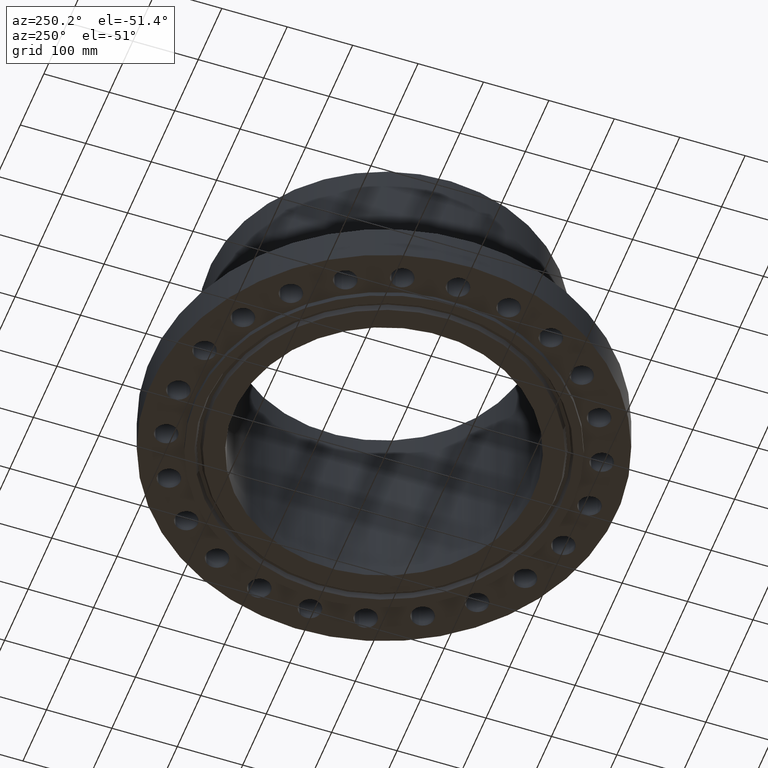
[diagram: clean part render]
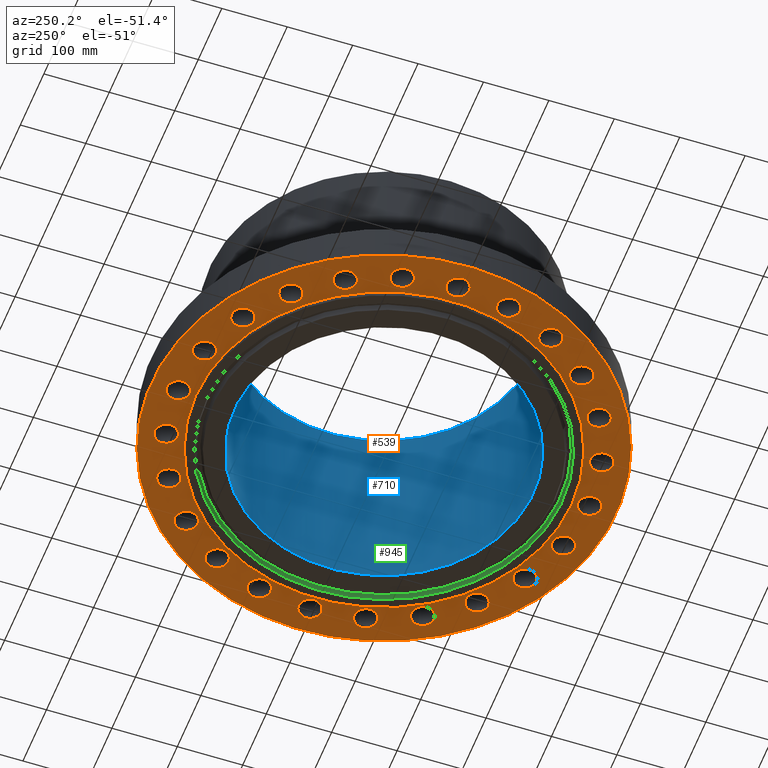
[diagram: same view with three faces highlighted in distinct colors, each labeled with its STEP entity id]
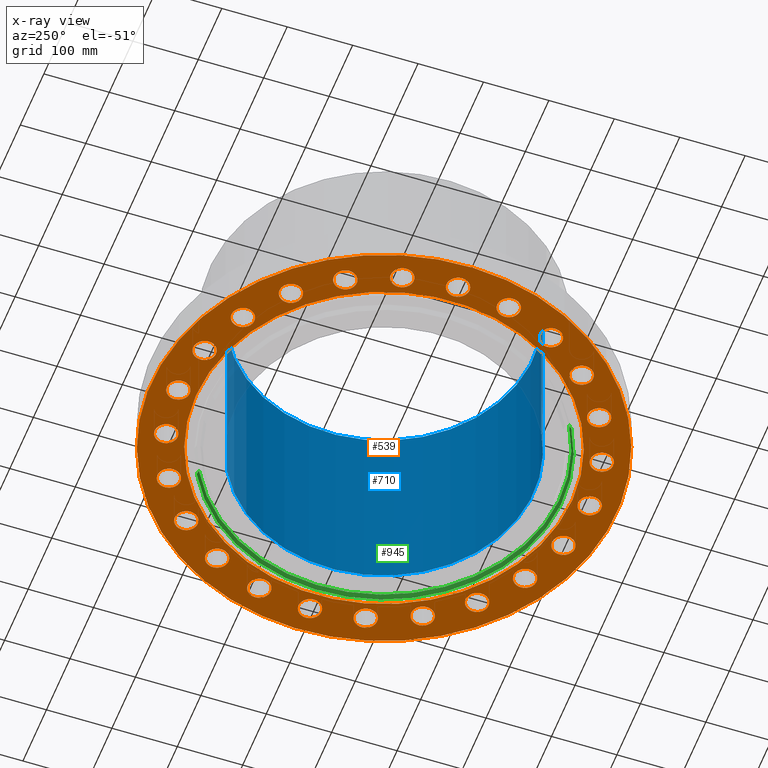
[diagram: x-ray of the same camera — body ghosted, the three highlighted faces saturated]
A machine part, auxiliary view with three faces highlighted in distinct colors.
The next image is the same camera in x-ray (body ghosted, the three faces saturated) — at least one of them is partly hidden behind the body in this view.
Their STEP definitions:

[orange] entity #539 — the highlighted planar face has unit normal (0, 0, -1).
#65=AXIS2_PLACEMENT_3D('Circle Axis2P3D',#63,#64,$) ;
#78=AXIS2_PLACEMENT_3D('Plane Axis2P3D',#75,#76,#77) ;
#82=AXIS2_PLACEMENT_3D('Circle Axis2P3D',#80,#81,$) ;
#91=AXIS2_PLACEMENT_3D('Circle Axis2P3D',#89,#90,$) ;
#100=AXIS2_PLACEMENT_3D('Circle Axis2P3D',#98,#99,$) ;
#109=AXIS2_PLACEMENT_3D('Circle Axis2P3D',#107,#108,$) ;
#118=AXIS2_PLACEMENT_3D('Circle Axis2P3D',#116,#117,$) ;
#127=AXIS2_PLACEMENT_3D('Circle Axis2P3D',#125,#126,$) ;
#136=AXIS2_PLACEMENT_3D('Circle Axis2P3D',#134,#135,$) ;
#145=AXIS2_PLACEMENT_3D('Circle Axis2P3D',#143,#144,$) ;
#154=AXIS2_PLACEMENT_3D('Circle Axis2P3D',#152,#153,$) ;
#163=AXIS2_PLACEMENT_3D('Circle Axis2P3D',#161,#162,$) ;
#172=AXIS2_PLACEMENT_3D('Circle Axis2P3D',#170,#171,$) ;
#181=AXIS2_PLACEMENT_3D('Circle Axis2P3D',#179,#180,$) ;
#190=AXIS2_PLACEMENT_3D('Circle Axis2P3D',#188,#189,$) ;
#199=AXIS2_PLACEMENT_3D('Circle Axis2P3D',#197,#198,$) ;
#208=AXIS2_PLACEMENT_3D('Circle Axis2P3D',#206,#207,$) ;
#217=AXIS2_PLACEMENT_3D('Circle Axis2P3D',#215,#216,$) ;
#226=AXIS2_PLACEMENT_3D('Circle Axis2P3D',#224,#225,$) ;
#235=AXIS2_PLACEMENT_3D('Circle Axis2P3D',#233,#234,$) ;
#244=AXIS2_PLACEMENT_3D('Circle Axis2P3D',#242,#243,$) ;
#253=AXIS2_PLACEMENT_3D('Circle Axis2P3D',#251,#252,$) ;
#262=AXIS2_PLACEMENT_3D('Circle Axis2P3D',#260,#261,$) ;
#271=AXIS2_PLACEMENT_3D('Circle Axis2P3D',#269,#270,$) ;
#280=AXIS2_PLACEMENT_3D('Circle Axis2P3D',#278,#279,$) ;
#289=AXIS2_PLACEMENT_3D('Circle Axis2P3D',#287,#288,$) ;
#298=AXIS2_PLACEMENT_3D('Circle Axis2P3D',#296,#297,$) ;
#307=AXIS2_PLACEMENT_3D('Circle Axis2P3D',#305,#306,$) ;
#316=AXIS2_PLACEMENT_3D('Circle Axis2P3D',#314,#315,$) ;
#325=AXIS2_PLACEMENT_3D('Circle Axis2P3D',#323,#324,$) ;
#334=AXIS2_PLACEMENT_3D('Circle Axis2P3D',#332,#333,$) ;
#343=AXIS2_PLACEMENT_3D('Circle Axis2P3D',#341,#342,$) ;
#352=AXIS2_PLACEMENT_3D('Circle Axis2P3D',#350,#351,$) ;
#361=AXIS2_PLACEMENT_3D('Circle Axis2P3D',#359,#360,$) ;
#370=AXIS2_PLACEMENT_3D('Circle Axis2P3D',#368,#369,$) ;
#379=AXIS2_PLACEMENT_3D('Circle Axis2P3D',#377,#378,$) ;
#388=AXIS2_PLACEMENT_3D('Circle Axis2P3D',#386,#387,$) ;
#397=AXIS2_PLACEMENT_3D('Circle Axis2P3D',#395,#396,$) ;
#406=AXIS2_PLACEMENT_3D('Circle Axis2P3D',#404,#405,$) ;
#415=AXIS2_PLACEMENT_3D('Circle Axis2P3D',#413,#414,$) ;
#424=AXIS2_PLACEMENT_3D('Circle Axis2P3D',#422,#423,$) ;
#433=AXIS2_PLACEMENT_3D('Circle Axis2P3D',#431,#432,$) ;
#442=AXIS2_PLACEMENT_3D('Circle Axis2P3D',#440,#441,$) ;
#451=AXIS2_PLACEMENT_3D('Circle Axis2P3D',#449,#450,$) ;
#460=AXIS2_PLACEMENT_3D('Circle Axis2P3D',#458,#459,$) ;
#469=AXIS2_PLACEMENT_3D('Circle Axis2P3D',#467,#468,$) ;
#478=AXIS2_PLACEMENT_3D('Circle Axis2P3D',#476,#477,$) ;
#487=AXIS2_PLACEMENT_3D('Circle Axis2P3D',#485,#486,$) ;
#496=AXIS2_PLACEMENT_3D('Circle Axis2P3D',#494,#495,$) ;
#505=AXIS2_PLACEMENT_3D('Circle Axis2P3D',#503,#504,$) ;
#514=AXIS2_PLACEMENT_3D('Circle Axis2P3D',#512,#513,$) ;
#523=AXIS2_PLACEMENT_3D('Circle Axis2P3D',#521,#522,$) ;
#532=AXIS2_PLACEMENT_3D('Circle Axis2P3D',#530,#531,$) ;
#46=CARTESIAN_POINT('Vertex',(11.7694680323,-0.330803621638,2.2401153548E-016)) ;
#60=CARTESIAN_POINT('Vertex',(12.9805319678,0.330803621638,2.2401153548E-016)) ;
#63=CARTESIAN_POINT('Axis2P3D Location',(12.375,0.,0.)) ;
#75=CARTESIAN_POINT('Axis2P3D Location',(0.,10.4188790699,0.)) ;
#80=CARTESIAN_POINT('Axis2P3D Location',(0.,0.,0.)) ;
#84=CARTESIAN_POINT('Vertex',(-6.71195754049,-12.2861558665,2.23792987641E-015)) ;
#86=CARTESIAN_POINT('Vertex',(6.71195754049,12.2861558665,2.23792987641E-015)) ;
#89=CARTESIAN_POINT('Axis2P3D Location',(0.,0.,0.)) ;
#98=CARTESIAN_POINT('Axis2P3D Location',(12.375,0.,0.)) ;
#107=CARTESIAN_POINT('Axis2P3D Location',(0.,0.,0.)) ;
#111=CARTESIAN_POINT('Vertex',(5.42350140548,9.92765273142,2.23792987641E-015)) ;
#113=CARTESIAN_POINT('Vertex',(-5.42350140548,-9.92765273142,2.23792987641E-015)) ;
#116=CARTESIAN_POINT('Axis2P3D Location',(0.,0.,0.)) ;
#125=CARTESIAN_POINT('Axis2P3D Location',(11.9533321004,-3.20288568316,0.)) ;
#129=CARTESIAN_POINT('Vertex',(12.6238493441,-3.04007712725,0.)) ;
#131=CARTESIAN_POINT('Vertex',(11.2828148567,-3.36569423907,0.)) ;
#134=CARTESIAN_POINT('Axis2P3D Location',(11.9533321004,-3.20288568316,0.)) ;
#143=CARTESIAN_POINT('Axis2P3D Location',(10.7170643719,-6.18750000002,0.)) ;
#147=CARTESIAN_POINT('Vertex',(11.4068722495,-6.20378164388,0.)) ;
#149=CARTESIAN_POINT('Vertex',(10.0272564942,-6.17121835617,0.)) ;
#152=CARTESIAN_POINT('Axis2P3D Location',(10.7170643719,-6.18750000002,0.)) ;
#161=CARTESIAN_POINT('Axis2P3D Location',(8.75044641722,-8.75044641722,0.)) ;
#165=CARTESIAN_POINT('Vertex',(9.41253566191,-8.94470869371,0.)) ;
#167=CARTESIAN_POINT('Vertex',(8.08835717253,-8.55618414073,0.)) ;
#170=CARTESIAN_POINT('Axis2P3D Location',(8.75044641722,-8.75044641722,0.)) ;
#179=CARTESIAN_POINT('Axis2P3D Location',(6.18750000002,-10.7170643719,0.)) ;
#183=CARTESIAN_POINT('Vertex',(6.77675032388,-11.0760686279,0.)) ;
#185=CARTESIAN_POINT('Vertex',(5.59824967617,-10.3580601159,0.)) ;
#188=CARTESIAN_POINT('Axis2P3D Location',(6.18750000002,-10.7170643719,0.)) ;
#197=CARTESIAN_POINT('Axis2P3D Location',(3.20288568316,-11.9533321004,0.)) ;
#201=CARTESIAN_POINT('Vertex',(3.67914065039,-12.4526127892,0.)) ;
#203=CARTESIAN_POINT('Vertex',(2.72663071593,-11.4540514116,0.)) ;
#206=CARTESIAN_POINT('Axis2P3D Location',(3.20288568316,-11.9533321004,0.)) ;
#215=CARTESIAN_POINT('Axis2P3D Location',(-1.46864148139E-015,-12.375,0.)) ;
#219=CARTESIAN_POINT('Vertex',(0.330803621638,-12.9805319678,0.)) ;
#221=CARTESIAN_POINT('Vertex',(-0.330803621638,-11.7694680323,0.)) ;
#224=CARTESIAN_POINT('Axis2P3D Location',(-1.53857679003E-015,-12.375,0.)) ;
#233=CARTESIAN_POINT('Axis2P3D Location',(-3.20288568316,-11.9533321004,0.)) ;
#237=CARTESIAN_POINT('Vertex',(-3.04007712725,-12.6238493441,0.)) ;
#239=CARTESIAN_POINT('Vertex',(-3.36569423907,-11.2828148567,0.)) ;
#242=CARTESIAN_POINT('Axis2P3D Location',(-3.20288568316,-11.9533321004,0.)) ;
#251=CARTESIAN_POINT('Axis2P3D Location',(-6.18750000002,-10.7170643719,0.)) ;
#255=CARTESIAN_POINT('Vertex',(-6.20378164388,-11.4068722495,0.)) ;
#257=CARTESIAN_POINT('Vertex',(-6.17121835617,-10.0272564942,0.)) ;
#260=CARTESIAN_POINT('Axis2P3D Location',(-6.18750000002,-10.7170643719,0.)) ;
#269=CARTESIAN_POINT('Axis2P3D Location',(-8.75044641722,-8.75044641722,0.)) ;
#273=CARTESIAN_POINT('Vertex',(-8.94470869371,-9.41253566191,0.)) ;
#275=CARTESIAN_POINT('Vertex',(-8.55618414073,-8.08835717253,0.)) ;
#278=CARTESIAN_POINT('Axis2P3D Location',(-8.75044641722,-8.75044641722,0.)) ;
#287=CARTESIAN_POINT('Axis2P3D Location',(-10.7170643719,-6.18750000002,0.)) ;
#291=CARTESIAN_POINT('Vertex',(-11.0760686279,-6.77675032388,0.)) ;
#293=CARTESIAN_POINT('Vertex',(-10.3580601159,-5.59824967617,0.)) ;
#296=CARTESIAN_POINT('Axis2P3D Location',(-10.7170643719,-6.18750000002,0.)) ;
#305=CARTESIAN_POINT('Axis2P3D Location',(-11.9533321004,-3.20288568316,0.)) ;
#309=CARTESIAN_POINT('Vertex',(-12.4526127892,-3.67914065039,0.)) ;
#311=CARTESIAN_POINT('Vertex',(-11.4540514116,-2.72663071593,0.)) ;
#314=CARTESIAN_POINT('Axis2P3D Location',(-11.9533321004,-3.20288568316,0.)) ;
#323=CARTESIAN_POINT('Axis2P3D Location',(-12.375,0.,0.)) ;
#327=CARTESIAN_POINT('Vertex',(-12.9805319678,-0.330803621638,0.)) ;
#329=CARTESIAN_POINT('Vertex',(-11.7694680323,0.330803621638,0.)) ;
#332=CARTESIAN_POINT('Axis2P3D Location',(-12.375,-4.47585975282E-015,0.)) ;
#341=CARTESIAN_POINT('Axis2P3D Location',(-11.9533321004,3.20288568316,0.)) ;
#345=CARTESIAN_POINT('Vertex',(-12.6238493441,3.04007712725,0.)) ;
#347=CARTESIAN_POINT('Vertex',(-11.2828148567,3.36569423907,0.)) ;
#350=CARTESIAN_POINT('Axis2P3D Location',(-11.9533321004,3.20288568316,0.)) ;
#359=CARTESIAN_POINT('Axis2P3D Location',(-10.7170643719,6.18750000002,0.)) ;
#363=CARTESIAN_POINT('Vertex',(-11.4068722495,6.20378164388,0.)) ;
#365=CARTESIAN_POINT('Vertex',(-10.0272564942,6.17121835617,0.)) ;
#368=CARTESIAN_POINT('Axis2P3D Location',(-10.7170643719,6.18750000002,0.)) ;
#377=CARTESIAN_POINT('Axis2P3D Location',(-8.75044641722,8.75044641722,0.)) ;
#381=CARTESIAN_POINT('Vertex',(-9.41253566191,8.94470869371,0.)) ;
#383=CARTESIAN_POINT('Vertex',(-8.08835717253,8.55618414073,0.)) ;
#386=CARTESIAN_POINT('Axis2P3D Location',(-8.75044641722,8.75044641722,0.)) ;
#395=CARTESIAN_POINT('Axis2P3D Location',(-6.18750000002,10.7170643719,0.)) ;
#399=CARTESIAN_POINT('Vertex',(-6.77675032388,11.0760686279,0.)) ;
#401=CARTESIAN_POINT('Vertex',(-5.59824967617,10.3580601159,0.)) ;
#404=CARTESIAN_POINT('Axis2P3D Location',(-6.18750000002,10.7170643719,0.)) ;
#413=CARTESIAN_POINT('Axis2P3D Location',(-3.20288568316,11.9533321004,0.)) ;
#417=CARTESIAN_POINT('Vertex',(-3.67914065039,12.4526127892,0.)) ;
#419=CARTESIAN_POINT('Vertex',(-2.72663071593,11.4540514116,0.)) ;
#422=CARTESIAN_POINT('Axis2P3D Location',(-3.20288568316,11.9533321004,0.)) ;
#431=CARTESIAN_POINT('Axis2P3D Location',(-2.23792987641E-015,12.375,0.)) ;
#435=CARTESIAN_POINT('Vertex',(-0.330803621638,12.9805319678,0.)) ;
#437=CARTESIAN_POINT('Vertex',(0.330803621638,11.7694680323,0.)) ;
#440=CARTESIAN_POINT('Axis2P3D Location',(-2.0281239505E-015,12.375,0.)) ;
#449=CARTESIAN_POINT('Axis2P3D Location',(3.20288568316,11.9533321004,0.)) ;
#453=CARTESIAN_POINT('Vertex',(3.04007712725,12.6238493441,0.)) ;
#455=CARTESIAN_POINT('Vertex',(3.36569423907,11.2828148567,0.)) ;
#458=CARTESIAN_POINT('Axis2P3D Location',(3.20288568316,11.9533321004,0.)) ;
#467=CARTESIAN_POINT('Axis2P3D Location',(6.18750000002,10.7170643719,0.)) ;
#471=CARTESIAN_POINT('Vertex',(6.20378164388,11.4068722495,0.)) ;
#473=CARTESIAN_POINT('Vertex',(6.17121835617,10.0272564942,0.)) ;
#476=CARTESIAN_POINT('Axis2P3D Location',(6.18750000002,10.7170643719,0.)) ;
#485=CARTESIAN_POINT('Axis2P3D Location',(8.75044641722,8.75044641722,0.)) ;
#489=CARTESIAN_POINT('Vertex',(8.94470869371,9.41253566191,0.)) ;
#491=CARTESIAN_POINT('Vertex',(8.55618414073,8.08835717253,0.)) ;
#494=CARTESIAN_POINT('Axis2P3D Location',(8.75044641722,8.75044641722,0.)) ;
#503=CARTESIAN_POINT('Axis2P3D Location',(10.7170643719,6.18750000002,0.)) ;
#507=CARTESIAN_POINT('Vertex',(11.0760686279,6.77675032388,0.)) ;
#509=CARTESIAN_POINT('Vertex',(10.3580601159,5.59824967617,0.)) ;
#512=CARTESIAN_POINT('Axis2P3D Location',(10.7170643719,6.18750000002,0.)) ;
#521=CARTESIAN_POINT('Axis2P3D Location',(11.9533321004,3.20288568316,0.)) ;
#525=CARTESIAN_POINT('Vertex',(12.4526127892,3.67914065039,0.)) ;
#527=CARTESIAN_POINT('Vertex',(11.4540514116,2.72663071593,0.)) ;
#530=CARTESIAN_POINT('Axis2P3D Location',(11.9533321004,3.20288568316,0.)) ;
#64=DIRECTION('Axis2P3D Direction',(0.,-0.,0.0393700787402)) ;
#76=DIRECTION('Axis2P3D Direction',(0.,0.,-0.0393700787402)) ;
#77=DIRECTION('Axis2P3D XDirection',(0.0393700787402,0.,0.)) ;
#81=DIRECTION('Axis2P3D Direction',(0.,0.,-0.0393700787402)) ;
#90=DIRECTION('Axis2P3D Direction',(0.,0.,-0.0393700787402)) ;
#99=DIRECTION('Axis2P3D Direction',(0.,0.,-0.0393700787402)) ;
#108=DIRECTION('Axis2P3D Direction',(0.,0.,-0.0393700787402)) ;
#117=DIRECTION('Axis2P3D Direction',(0.,0.,-0.0393700787402)) ;
#126=DIRECTION('Axis2P3D Direction',(0.,0.,-0.0393700787402)) ;
#135=DIRECTION('Axis2P3D Direction',(0.,0.,-0.0393700787402)) ;
#144=DIRECTION('Axis2P3D Direction',(0.,0.,-0.0393700787402)) ;
#153=DIRECTION('Axis2P3D Direction',(0.,0.,-0.0393700787402)) ;
#162=DIRECTION('Axis2P3D Direction',(0.,0.,-0.0393700787402)) ;
#171=DIRECTION('Axis2P3D Direction',(0.,0.,-0.0393700787402)) ;
#180=DIRECTION('Axis2P3D Direction',(0.,0.,-0.0393700787402)) ;
#189=DIRECTION('Axis2P3D Direction',(0.,0.,-0.0393700787402)) ;
#198=DIRECTION('Axis2P3D Direction',(0.,0.,-0.0393700787402)) ;
#207=DIRECTION('Axis2P3D Direction',(0.,0.,-0.0393700787402)) ;
#216=DIRECTION('Axis2P3D Direction',(0.,0.,-0.0393700787402)) ;
#225=DIRECTION('Axis2P3D Direction',(0.,0.,-0.0393700787402)) ;
#234=DIRECTION('Axis2P3D Direction',(0.,0.,-0.0393700787402)) ;
#243=DIRECTION('Axis2P3D Direction',(0.,0.,-0.0393700787402)) ;
#252=DIRECTION('Axis2P3D Direction',(0.,0.,-0.0393700787402)) ;
#261=DIRECTION('Axis2P3D Direction',(0.,0.,-0.0393700787402)) ;
#270=DIRECTION('Axis2P3D Direction',(0.,0.,-0.0393700787402)) ;
#279=DIRECTION('Axis2P3D Direction',(0.,0.,-0.0393700787402)) ;
#288=DIRECTION('Axis2P3D Direction',(0.,0.,-0.0393700787402)) ;
#297=DIRECTION('Axis2P3D Direction',(0.,0.,-0.0393700787402)) ;
#306=DIRECTION('Axis2P3D Direction',(0.,0.,-0.0393700787402)) ;
#315=DIRECTION('Axis2P3D Direction',(0.,0.,-0.0393700787402)) ;
#324=DIRECTION('Axis2P3D Direction',(0.,0.,-0.0393700787402)) ;
#333=DIRECTION('Axis2P3D Direction',(0.,0.,-0.0393700787402)) ;
#342=DIRECTION('Axis2P3D Direction',(0.,0.,-0.0393700787402)) ;
#351=DIRECTION('Axis2P3D Direction',(0.,0.,-0.0393700787402)) ;
#360=DIRECTION('Axis2P3D Direction',(0.,0.,-0.0393700787402)) ;
#369=DIRECTION('Axis2P3D Direction',(0.,0.,-0.0393700787402)) ;
#378=DIRECTION('Axis2P3D Direction',(0.,0.,-0.0393700787402)) ;
#387=DIRECTION('Axis2P3D Direction',(0.,0.,-0.0393700787402)) ;
#396=DIRECTION('Axis2P3D Direction',(0.,0.,-0.0393700787402)) ;
#405=DIRECTION('Axis2P3D Direction',(0.,0.,-0.0393700787402)) ;
#414=DIRECTION('Axis2P3D Direction',(0.,0.,-0.0393700787402)) ;
#423=DIRECTION('Axis2P3D Direction',(0.,0.,-0.0393700787402)) ;
#432=DIRECTION('Axis2P3D Direction',(0.,0.,-0.0393700787402)) ;
#441=DIRECTION('Axis2P3D Direction',(0.,0.,-0.0393700787402)) ;
#450=DIRECTION('Axis2P3D Direction',(0.,0.,-0.0393700787402)) ;
#459=DIRECTION('Axis2P3D Direction',(0.,0.,-0.0393700787402)) ;
#468=DIRECTION('Axis2P3D Direction',(0.,0.,-0.0393700787402)) ;
#477=DIRECTION('Axis2P3D Direction',(0.,0.,-0.0393700787402)) ;
#486=DIRECTION('Axis2P3D Direction',(0.,0.,-0.0393700787402)) ;
#495=DIRECTION('Axis2P3D Direction',(0.,0.,-0.0393700787402)) ;
#504=DIRECTION('Axis2P3D Direction',(0.,0.,-0.0393700787402)) ;
#513=DIRECTION('Axis2P3D Direction',(0.,0.,-0.0393700787402)) ;
#522=DIRECTION('Axis2P3D Direction',(0.,0.,-0.0393700787402)) ;
#531=DIRECTION('Axis2P3D Direction',(0.,0.,-0.0393700787402)) ;
#95=ORIENTED_EDGE('',*,*,#88,.T.) ;
#96=ORIENTED_EDGE('',*,*,#93,.T.) ;
#104=ORIENTED_EDGE('',*,*,#102,.F.) ;
#105=ORIENTED_EDGE('',*,*,#67,.F.) ;
#122=ORIENTED_EDGE('',*,*,#115,.F.) ;
#123=ORIENTED_EDGE('',*,*,#120,.F.) ;
#140=ORIENTED_EDGE('',*,*,#133,.F.) ;
#141=ORIENTED_EDGE('',*,*,#138,.F.) ;
#158=ORIENTED_EDGE('',*,*,#151,.F.) ;
#159=ORIENTED_EDGE('',*,*,#156,.F.) ;
#176=ORIENTED_EDGE('',*,*,#169,.F.) ;
#177=ORIENTED_EDGE('',*,*,#174,.F.) ;
#194=ORIENTED_EDGE('',*,*,#187,.F.) ;
#195=ORIENTED_EDGE('',*,*,#192,.F.) ;
#212=ORIENTED_EDGE('',*,*,#205,.F.) ;
#213=ORIENTED_EDGE('',*,*,#210,.F.) ;
#230=ORIENTED_EDGE('',*,*,#223,.F.) ;
#231=ORIENTED_EDGE('',*,*,#228,.F.) ;
#248=ORIENTED_EDGE('',*,*,#241,.F.) ;
#249=ORIENTED_EDGE('',*,*,#246,.F.) ;
#266=ORIENTED_EDGE('',*,*,#259,.F.) ;
#267=ORIENTED_EDGE('',*,*,#264,.F.) ;
#284=ORIENTED_EDGE('',*,*,#277,.F.) ;
#285=ORIENTED_EDGE('',*,*,#282,.F.) ;
#302=ORIENTED_EDGE('',*,*,#295,.F.) ;
#303=ORIENTED_EDGE('',*,*,#300,.F.) ;
#320=ORIENTED_EDGE('',*,*,#313,.F.) ;
#321=ORIENTED_EDGE('',*,*,#318,.F.) ;
#338=ORIENTED_EDGE('',*,*,#331,.F.) ;
#339=ORIENTED_EDGE('',*,*,#336,.F.) ;
#356=ORIENTED_EDGE('',*,*,#349,.F.) ;
#357=ORIENTED_EDGE('',*,*,#354,.F.) ;
#374=ORIENTED_EDGE('',*,*,#367,.F.) ;
#375=ORIENTED_EDGE('',*,*,#372,.F.) ;
#392=ORIENTED_EDGE('',*,*,#385,.F.) ;
#393=ORIENTED_EDGE('',*,*,#390,.F.) ;
#410=ORIENTED_EDGE('',*,*,#403,.F.) ;
#411=ORIENTED_EDGE('',*,*,#408,.F.) ;
#428=ORIENTED_EDGE('',*,*,#421,.F.) ;
#429=ORIENTED_EDGE('',*,*,#426,.F.) ;
#446=ORIENTED_EDGE('',*,*,#439,.F.) ;
#447=ORIENTED_EDGE('',*,*,#444,.F.) ;
#464=ORIENTED_EDGE('',*,*,#457,.F.) ;
#465=ORIENTED_EDGE('',*,*,#462,.F.) ;
#482=ORIENTED_EDGE('',*,*,#475,.F.) ;
#483=ORIENTED_EDGE('',*,*,#480,.F.) ;
#500=ORIENTED_EDGE('',*,*,#493,.F.) ;
#501=ORIENTED_EDGE('',*,*,#498,.F.) ;
#518=ORIENTED_EDGE('',*,*,#511,.F.) ;
#519=ORIENTED_EDGE('',*,*,#516,.F.) ;
#536=ORIENTED_EDGE('',*,*,#529,.F.) ;
#537=ORIENTED_EDGE('',*,*,#534,.F.) ;
#106=FACE_BOUND('',#103,.T.) ;
#124=FACE_BOUND('',#121,.T.) ;
#142=FACE_BOUND('',#139,.T.) ;
#160=FACE_BOUND('',#157,.T.) ;
#178=FACE_BOUND('',#175,.T.) ;
#196=FACE_BOUND('',#193,.T.) ;
#214=FACE_BOUND('',#211,.T.) ;
#232=FACE_BOUND('',#229,.T.) ;
#250=FACE_BOUND('',#247,.T.) ;
#268=FACE_BOUND('',#265,.T.) ;
#286=FACE_BOUND('',#283,.T.) ;
#304=FACE_BOUND('',#301,.T.) ;
#322=FACE_BOUND('',#319,.T.) ;
#340=FACE_BOUND('',#337,.T.) ;
#358=FACE_BOUND('',#355,.T.) ;
#376=FACE_BOUND('',#373,.T.) ;
#394=FACE_BOUND('',#391,.T.) ;
#412=FACE_BOUND('',#409,.T.) ;
#430=FACE_BOUND('',#427,.T.) ;
#448=FACE_BOUND('',#445,.T.) ;
#466=FACE_BOUND('',#463,.T.) ;
#484=FACE_BOUND('',#481,.T.) ;
#502=FACE_BOUND('',#499,.T.) ;
#520=FACE_BOUND('',#517,.T.) ;
#538=FACE_BOUND('',#535,.T.) ;
#539=ADVANCED_FACE('PartBody',(#97,#106,#124,#142,#160,#178,#196,#214,#232,#250,#268,#286,#304,#322,#340,#358,#376,#394,#412,#430,#448,#466,#484,#502,#520,#538),#79,.T.) ;
#66=CIRCLE('generated circle',#65,0.690000000003) ;
#83=CIRCLE('generated circle',#82,14.0000000001) ;
#92=CIRCLE('generated circle',#91,14.0000000001) ;
#101=CIRCLE('generated circle',#100,0.690000000003) ;
#110=CIRCLE('generated circle',#109,11.3125) ;
#119=CIRCLE('generated circle',#118,11.3125) ;
#128=CIRCLE('generated circle',#127,0.690000000003) ;
#137=CIRCLE('generated circle',#136,0.690000000003) ;
#146=CIRCLE('generated circle',#145,0.690000000003) ;
#155=CIRCLE('generated circle',#154,0.690000000003) ;
#164=CIRCLE('generated circle',#163,0.690000000003) ;
#173=CIRCLE('generated circle',#172,0.690000000003) ;
#182=CIRCLE('generated circle',#181,0.690000000003) ;
#191=CIRCLE('generated circle',#190,0.690000000003) ;
#200=CIRCLE('generated circle',#199,0.690000000003) ;
#209=CIRCLE('generated circle',#208,0.690000000003) ;
#218=CIRCLE('generated circle',#217,0.690000000003) ;
#227=CIRCLE('generated circle',#226,0.690000000003) ;
#236=CIRCLE('generated circle',#235,0.690000000003) ;
#245=CIRCLE('generated circle',#244,0.690000000003) ;
#254=CIRCLE('generated circle',#253,0.690000000003) ;
#263=CIRCLE('generated circle',#262,0.690000000003) ;
#272=CIRCLE('generated circle',#271,0.690000000003) ;
#281=CIRCLE('generated circle',#280,0.690000000003) ;
#290=CIRCLE('generated circle',#289,0.690000000003) ;
#299=CIRCLE('generated circle',#298,0.690000000003) ;
#308=CIRCLE('generated circle',#307,0.690000000003) ;
#317=CIRCLE('generated circle',#316,0.690000000003) ;
#326=CIRCLE('generated circle',#325,0.690000000003) ;
#335=CIRCLE('generated circle',#334,0.690000000003) ;
#344=CIRCLE('generated circle',#343,0.690000000003) ;
#353=CIRCLE('generated circle',#352,0.690000000003) ;
#362=CIRCLE('generated circle',#361,0.690000000003) ;
#371=CIRCLE('generated circle',#370,0.690000000003) ;
#380=CIRCLE('generated circle',#379,0.690000000003) ;
#389=CIRCLE('generated circle',#388,0.690000000003) ;
#398=CIRCLE('generated circle',#397,0.690000000003) ;
#407=CIRCLE('generated circle',#406,0.690000000003) ;
#416=CIRCLE('generated circle',#415,0.690000000003) ;
#425=CIRCLE('generated circle',#424,0.690000000003) ;
#434=CIRCLE('generated circle',#433,0.690000000003) ;
#443=CIRCLE('generated circle',#442,0.690000000003) ;
#452=CIRCLE('generated circle',#451,0.690000000003) ;
#461=CIRCLE('generated circle',#460,0.690000000003) ;
#470=CIRCLE('generated circle',#469,0.690000000003) ;
#479=CIRCLE('generated circle',#478,0.690000000003) ;
#488=CIRCLE('generated circle',#487,0.690000000003) ;
#497=CIRCLE('generated circle',#496,0.690000000003) ;
#506=CIRCLE('generated circle',#505,0.690000000003) ;
#515=CIRCLE('generated circle',#514,0.690000000003) ;
#524=CIRCLE('generated circle',#523,0.690000000003) ;
#533=CIRCLE('generated circle',#532,0.690000000003) ;
#67=EDGE_CURVE('',#61,#47,#66,.F.) ;
#88=EDGE_CURVE('',#85,#87,#83,.T.) ;
#93=EDGE_CURVE('',#87,#85,#92,.T.) ;
#102=EDGE_CURVE('',#47,#61,#101,.T.) ;
#115=EDGE_CURVE('',#112,#114,#110,.T.) ;
#120=EDGE_CURVE('',#114,#112,#119,.T.) ;
#133=EDGE_CURVE('',#130,#132,#128,.T.) ;
#138=EDGE_CURVE('',#132,#130,#137,.T.) ;
#151=EDGE_CURVE('',#148,#150,#146,.T.) ;
#156=EDGE_CURVE('',#150,#148,#155,.T.) ;
#169=EDGE_CURVE('',#166,#168,#164,.T.) ;
#174=EDGE_CURVE('',#168,#166,#173,.T.) ;
#187=EDGE_CURVE('',#184,#186,#182,.T.) ;
#192=EDGE_CURVE('',#186,#184,#191,.T.) ;
#205=EDGE_CURVE('',#202,#204,#200,.T.) ;
#210=EDGE_CURVE('',#204,#202,#209,.T.) ;
#223=EDGE_CURVE('',#220,#222,#218,.T.) ;
#228=EDGE_CURVE('',#222,#220,#227,.T.) ;
#241=EDGE_CURVE('',#238,#240,#236,.T.) ;
#246=EDGE_CURVE('',#240,#238,#245,.T.) ;
#259=EDGE_CURVE('',#256,#258,#254,.T.) ;
#264=EDGE_CURVE('',#258,#256,#263,.T.) ;
#277=EDGE_CURVE('',#274,#276,#272,.T.) ;
#282=EDGE_CURVE('',#276,#274,#281,.T.) ;
#295=EDGE_CURVE('',#292,#294,#290,.T.) ;
#300=EDGE_CURVE('',#294,#292,#299,.T.) ;
#313=EDGE_CURVE('',#310,#312,#308,.T.) ;
#318=EDGE_CURVE('',#312,#310,#317,.T.) ;
#331=EDGE_CURVE('',#328,#330,#326,.T.) ;
#336=EDGE_CURVE('',#330,#328,#335,.T.) ;
#349=EDGE_CURVE('',#346,#348,#344,.T.) ;
#354=EDGE_CURVE('',#348,#346,#353,.T.) ;
#367=EDGE_CURVE('',#364,#366,#362,.T.) ;
#372=EDGE_CURVE('',#366,#364,#371,.T.) ;
#385=EDGE_CURVE('',#382,#384,#380,.T.) ;
#390=EDGE_CURVE('',#384,#382,#389,.T.) ;
#403=EDGE_CURVE('',#400,#402,#398,.T.) ;
#408=EDGE_CURVE('',#402,#400,#407,.T.) ;
#421=EDGE_CURVE('',#418,#420,#416,.T.) ;
#426=EDGE_CURVE('',#420,#418,#425,.T.) ;
#439=EDGE_CURVE('',#436,#438,#434,.T.) ;
#444=EDGE_CURVE('',#438,#436,#443,.T.) ;
#457=EDGE_CURVE('',#454,#456,#452,.T.) ;
#462=EDGE_CURVE('',#456,#454,#461,.T.) ;
#475=EDGE_CURVE('',#472,#474,#470,.T.) ;
#480=EDGE_CURVE('',#474,#472,#479,.T.) ;
#493=EDGE_CURVE('',#490,#492,#488,.T.) ;
#498=EDGE_CURVE('',#492,#490,#497,.T.) ;
#511=EDGE_CURVE('',#508,#510,#506,.T.) ;
#516=EDGE_CURVE('',#510,#508,#515,.T.) ;
#529=EDGE_CURVE('',#526,#528,#524,.T.) ;
#534=EDGE_CURVE('',#528,#526,#533,.T.) ;
#94=EDGE_LOOP('',(#95,#96)) ;
#103=EDGE_LOOP('',(#104,#105)) ;
#121=EDGE_LOOP('',(#122,#123)) ;
#139=EDGE_LOOP('',(#140,#141)) ;
#157=EDGE_LOOP('',(#158,#159)) ;
#175=EDGE_LOOP('',(#176,#177)) ;
#193=EDGE_LOOP('',(#194,#195)) ;
#211=EDGE_LOOP('',(#212,#213)) ;
#229=EDGE_LOOP('',(#230,#231)) ;
#247=EDGE_LOOP('',(#248,#249)) ;
#265=EDGE_LOOP('',(#266,#267)) ;
#283=EDGE_LOOP('',(#284,#285)) ;
#301=EDGE_LOOP('',(#302,#303)) ;
#319=EDGE_LOOP('',(#320,#321)) ;
#337=EDGE_LOOP('',(#338,#339)) ;
#355=EDGE_LOOP('',(#356,#357)) ;
#373=EDGE_LOOP('',(#374,#375)) ;
#391=EDGE_LOOP('',(#392,#393)) ;
#409=EDGE_LOOP('',(#410,#411)) ;
#427=EDGE_LOOP('',(#428,#429)) ;
#445=EDGE_LOOP('',(#446,#447)) ;
#463=EDGE_LOOP('',(#464,#465)) ;
#481=EDGE_LOOP('',(#482,#483)) ;
#499=EDGE_LOOP('',(#500,#501)) ;
#517=EDGE_LOOP('',(#518,#519)) ;
#535=EDGE_LOOP('',(#536,#537)) ;
#97=FACE_OUTER_BOUND('',#94,.T.) ;
#79=PLANE('',#78) ;
#47=VERTEX_POINT('',#46) ;
#61=VERTEX_POINT('',#60) ;
#85=VERTEX_POINT('',#84) ;
#87=VERTEX_POINT('',#86) ;
#112=VERTEX_POINT('',#111) ;
#114=VERTEX_POINT('',#113) ;
#130=VERTEX_POINT('',#129) ;
#132=VERTEX_POINT('',#131) ;
#148=VERTEX_POINT('',#147) ;
#150=VERTEX_POINT('',#149) ;
#166=VERTEX_POINT('',#165) ;
#168=VERTEX_POINT('',#167) ;
#184=VERTEX_POINT('',#183) ;
#186=VERTEX_POINT('',#185) ;
#202=VERTEX_POINT('',#201) ;
#204=VERTEX_POINT('',#203) ;
#220=VERTEX_POINT('',#219) ;
#222=VERTEX_POINT('',#221) ;
#238=VERTEX_POINT('',#237) ;
#240=VERTEX_POINT('',#239) ;
#256=VERTEX_POINT('',#255) ;
#258=VERTEX_POINT('',#257) ;
#274=VERTEX_POINT('',#273) ;
#276=VERTEX_POINT('',#275) ;
#292=VERTEX_POINT('',#291) ;
#294=VERTEX_POINT('',#293) ;
#310=VERTEX_POINT('',#309) ;
#312=VERTEX_POINT('',#311) ;
#328=VERTEX_POINT('',#327) ;
#330=VERTEX_POINT('',#329) ;
#346=VERTEX_POINT('',#345) ;
#348=VERTEX_POINT('',#347) ;
#364=VERTEX_POINT('',#363) ;
#366=VERTEX_POINT('',#365) ;
#382=VERTEX_POINT('',#381) ;
#384=VERTEX_POINT('',#383) ;
#400=VERTEX_POINT('',#399) ;
#402=VERTEX_POINT('',#401) ;
#418=VERTEX_POINT('',#417) ;
#420=VERTEX_POINT('',#419) ;
#436=VERTEX_POINT('',#435) ;
#438=VERTEX_POINT('',#437) ;
#454=VERTEX_POINT('',#453) ;
#456=VERTEX_POINT('',#455) ;
#472=VERTEX_POINT('',#471) ;
#474=VERTEX_POINT('',#473) ;
#490=VERTEX_POINT('',#489) ;
#492=VERTEX_POINT('',#491) ;
#508=VERTEX_POINT('',#507) ;
#510=VERTEX_POINT('',#509) ;
#526=VERTEX_POINT('',#525) ;
#528=VERTEX_POINT('',#527) ;

[blue] entity #710 — the highlighted cylindrical surface (partial cylindrical patch) has radius 228.6 mm, axis along (0, 0, -1).
#672=AXIS2_PLACEMENT_3D('Circle Axis2P3D',#670,#671,$) ;
#683=AXIS2_PLACEMENT_3D('Cylinder Axis2P3D',#680,#681,#682) ;
#694=AXIS2_PLACEMENT_3D('Circle Axis2P3D',#692,#693,$) ;
#665=CARTESIAN_POINT('Vertex',(-4.31482984746,-7.89824305704,11.9375)) ;
#667=CARTESIAN_POINT('Vertex',(4.31482984746,7.89824305704,11.9375)) ;
#670=CARTESIAN_POINT('Axis2P3D Location',(0.,0.,11.9375)) ;
#680=CARTESIAN_POINT('Axis2P3D Location',(0.,0.,5.81225000002)) ;
#685=CARTESIAN_POINT('Line Origine',(4.31482984746,7.89824305704,5.81225000002)) ;
#689=CARTESIAN_POINT('Vertex',(4.31482984746,7.89824305704,-0.313000000001)) ;
#692=CARTESIAN_POINT('Axis2P3D Location',(0.,0.,-0.313000000001)) ;
#696=CARTESIAN_POINT('Vertex',(-4.31482984746,-7.89824305704,-0.313000000001)) ;
#699=CARTESIAN_POINT('Line Origine',(-4.31482984746,-7.89824305704,5.81225000002)) ;
#671=DIRECTION('Axis2P3D Direction',(0.,0.,-0.0393700787402)) ;
#681=DIRECTION('Axis2P3D Direction',(0.,0.,-0.0393700787402)) ;
#682=DIRECTION('Axis2P3D XDirection',(-0.0188750212049,-0.0345504945626,0.)) ;
#686=DIRECTION('Vector Direction',(0.,0.,-0.0393700787402)) ;
#693=DIRECTION('Axis2P3D Direction',(0.,0.,-0.0393700787402)) ;
#700=DIRECTION('Vector Direction',(0.,0.,-0.0393700787402)) ;
#687=VECTOR('Line Direction',#686,0.0393700787402) ;
#701=VECTOR('Line Direction',#700,0.0393700787402) ;
#705=ORIENTED_EDGE('',*,*,#674,.F.) ;
#706=ORIENTED_EDGE('',*,*,#691,.T.) ;
#707=ORIENTED_EDGE('',*,*,#698,.T.) ;
#708=ORIENTED_EDGE('',*,*,#703,.F.) ;
#710=ADVANCED_FACE('PartBody',(#709),#684,.F.) ;
#673=CIRCLE('generated circle',#672,9.00000000004) ;
#695=CIRCLE('generated circle',#694,9.00000000004) ;
#684=CYLINDRICAL_SURFACE('generated cylinder',#683,9.00000000004) ;
#674=EDGE_CURVE('',#668,#666,#673,.T.) ;
#691=EDGE_CURVE('',#668,#690,#688,.T.) ;
#698=EDGE_CURVE('',#690,#697,#695,.T.) ;
#703=EDGE_CURVE('',#666,#697,#702,.T.) ;
#704=EDGE_LOOP('',(#705,#706,#707,#708)) ;
#709=FACE_OUTER_BOUND('',#704,.T.) ;
#688=LINE('Line',#685,#687) ;
#702=LINE('Line',#699,#701) ;
#666=VERTEX_POINT('',#665) ;
#668=VERTEX_POINT('',#667) ;
#690=VERTEX_POINT('',#689) ;
#697=VERTEX_POINT('',#696) ;

[green] entity #945 — the highlighted conical surface has half-angle 23 deg.
#893=AXIS2_PLACEMENT_3D('Circle Axis2P3D',#891,#892,$) ;
#906=AXIS2_PLACEMENT_3D('Cone Axis2P3D',#903,#904,#905) ;
#936=AXIS2_PLACEMENT_3D('Circle Axis2P3D',#934,#935,$) ;
#869=CARTESIAN_POINT('Vertex',(-5.08654032057,-9.31084960281,-0.0188873350169)) ;
#876=CARTESIAN_POINT('Vertex',(5.08654032057,9.31084960281,-0.0188873350169)) ;
#891=CARTESIAN_POINT('Axis2P3D Location',(0.,0.,-0.0188873350169)) ;
#903=CARTESIAN_POINT('Axis2P3D Location',(0.,0.,-0.0188873350169)) ;
#908=CARTESIAN_POINT('Line Origine',(-5.11646688237,-9.36562980673,-0.165943667509)) ;
#912=CARTESIAN_POINT('Vertex',(-5.14639344417,-9.42041001065,-0.313000000001)) ;
#919=CARTESIAN_POINT('Vertex',(5.14639344417,9.42041001065,-0.313000000001)) ;
#922=CARTESIAN_POINT('Line Origine',(5.11646688237,9.36562980673,-0.165943667509)) ;
#934=CARTESIAN_POINT('Axis2P3D Location',(0.,0.,-0.313000000001)) ;
#892=DIRECTION('Axis2P3D Direction',(0.,0.,-0.0393700787402)) ;
#904=DIRECTION('Axis2P3D Direction',(0.,0.,-0.0393700787402)) ;
#905=DIRECTION('Axis2P3D XDirection',(0.0188750212049,0.0345504945626,0.)) ;
#909=DIRECTION('Vector Direction',(-0.00737505833565,-0.0134999537303,-0.0362403485611)) ;
#923=DIRECTION('Vector Direction',(0.00737505833565,0.0134999537303,-0.0362403485611)) ;
#935=DIRECTION('Axis2P3D Direction',(0.,0.,-0.0393700787402)) ;
#910=VECTOR('Line Direction',#909,0.0393700787402) ;
#924=VECTOR('Line Direction',#923,0.0393700787402) ;
#940=ORIENTED_EDGE('',*,*,#895,.F.) ;
#941=ORIENTED_EDGE('',*,*,#926,.T.) ;
#942=ORIENTED_EDGE('',*,*,#938,.T.) ;
#943=ORIENTED_EDGE('',*,*,#914,.F.) ;
#945=ADVANCED_FACE('PartBody',(#944),#907,.F.) ;
#894=CIRCLE('generated circle',#893,10.6096565806) ;
#937=CIRCLE('generated circle',#936,10.7345) ;
#907=CONICAL_SURFACE('Cone',#906,10.6096565806,0.401425727959) ;
#895=EDGE_CURVE('',#877,#870,#894,.T.) ;
#914=EDGE_CURVE('',#870,#913,#911,.T.) ;
#926=EDGE_CURVE('',#877,#920,#925,.T.) ;
#938=EDGE_CURVE('',#920,#913,#937,.T.) ;
#939=EDGE_LOOP('',(#940,#941,#942,#943)) ;
#944=FACE_OUTER_BOUND('',#939,.T.) ;
#911=LINE('Line',#908,#910) ;
#925=LINE('Line',#922,#924) ;
#870=VERTEX_POINT('',#869) ;
#877=VERTEX_POINT('',#876) ;
#913=VERTEX_POINT('',#912) ;
#920=VERTEX_POINT('',#919) ;